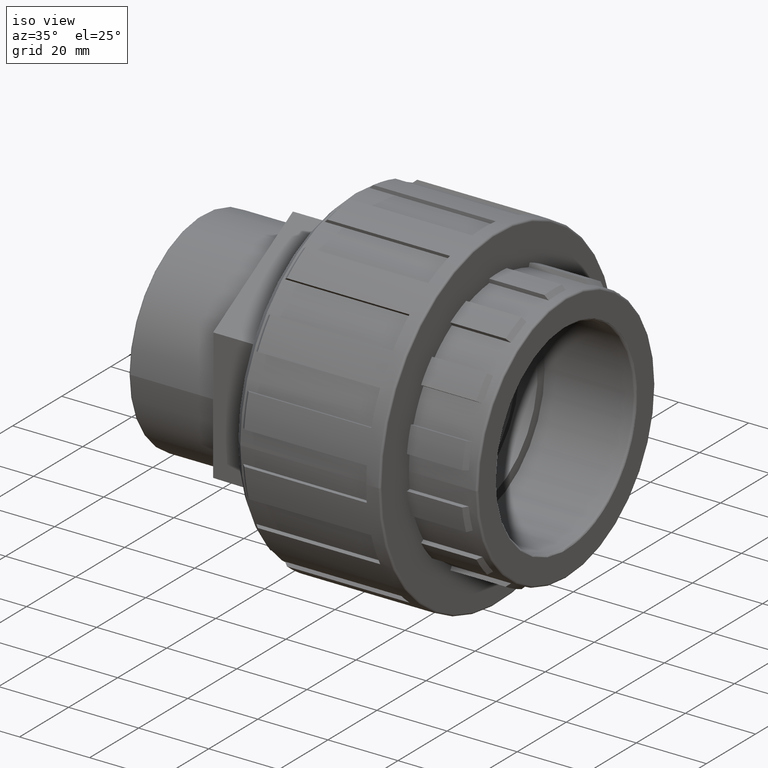
[diagram: clean part render]
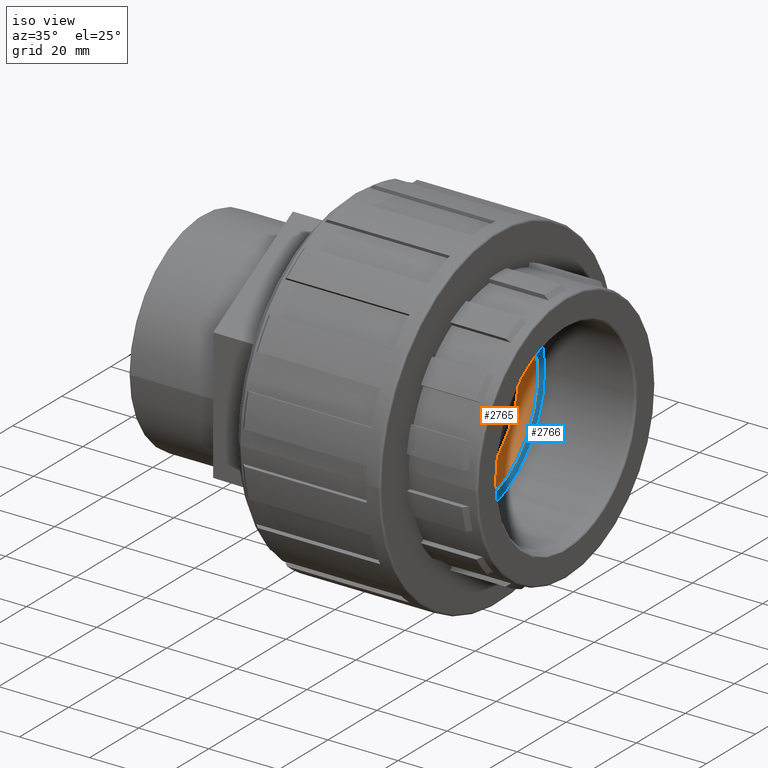
[diagram: same view with the hole feature highlighted: cylindrical wall and planar end face, labeled with their STEP entity ids]
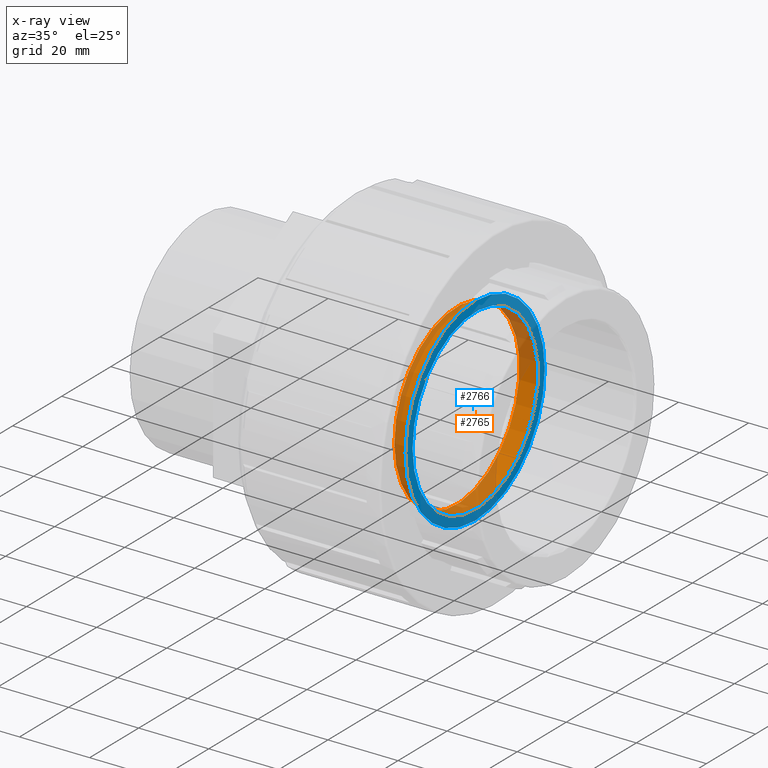
[diagram: x-ray of the same camera — body ghosted, the hole faces saturated]
A machine part, iso view. The highlighted faces form one hole feature of diameter 50.9904 mm: the cylindrical wall (entity #2765, orange) and its adjacent planar end face (entity #2766, blue) — they share a circular edge in the B-rep.
The next image is the same camera in x-ray (body ghosted, the hole faces saturated) — the bore reads through the body.
Wall:
#70=FACE_BOUND('',#547,.T.);
#94=CYLINDRICAL_SURFACE('',#3053,25.4952);
#232=CIRCLE('',#3052,25.4952);
#233=CIRCLE('',#3054,25.4952);
#379=FACE_OUTER_BOUND('',#546,.T.);
#546=EDGE_LOOP('',(#2519));
#547=EDGE_LOOP('',(#2520));
#1337=VERTEX_POINT('',#4701);
#1338=VERTEX_POINT('',#4704);
#1734=EDGE_CURVE('',#1337,#1337,#232,.T.);
#1735=EDGE_CURVE('',#1338,#1338,#233,.T.);
#2519=ORIENTED_EDGE('',*,*,#1734,.T.);
#2520=ORIENTED_EDGE('',*,*,#1735,.F.);
#2765=ADVANCED_FACE('',(#379,#70),#94,.F.);
#3052=AXIS2_PLACEMENT_3D('',#4702,#3881,#3882);
#3053=AXIS2_PLACEMENT_3D('',#4703,#3883,#3884);
#3054=AXIS2_PLACEMENT_3D('',#4705,#3885,#3886);
#3881=DIRECTION('center_axis',(-1.,-1.83697019872103E-16,0.));
#3882=DIRECTION('ref_axis',(0.,0.,1.));
#3883=DIRECTION('center_axis',(-1.,-1.83697019872103E-16,0.));
#3884=DIRECTION('ref_axis',(1.48988227547241E-16,-1.,0.));
#3885=DIRECTION('center_axis',(-1.,-1.83697019872103E-16,0.));
#3886=DIRECTION('ref_axis',(0.,0.,1.));
#4701=CARTESIAN_POINT('',(20.8,-25.4952,0.));
#4702=CARTESIAN_POINT('Origin',(20.8,1.33731430466891E-14,0.));
#4703=CARTESIAN_POINT('Origin',(23.4,1.38507552983566E-14,0.));
#4704=CARTESIAN_POINT('',(26.,-25.4952,0.));
#4705=CARTESIAN_POINT('Origin',(26.,1.4328367550024E-14,0.));
End face:
#71=FACE_BOUND('',#549,.T.);
#219=CIRCLE('',#3023,28.328);
#233=CIRCLE('',#3054,25.4952);
#380=FACE_OUTER_BOUND('',#548,.T.);
#548=EDGE_LOOP('',(#2521));
#549=EDGE_LOOP('',(#2522));
#1324=VERTEX_POINT('',#4656);
#1338=VERTEX_POINT('',#4704);
#1718=EDGE_CURVE('',#1324,#1324,#219,.T.);
#1735=EDGE_CURVE('',#1338,#1338,#233,.T.);
#2521=ORIENTED_EDGE('',*,*,#1718,.F.);
#2522=ORIENTED_EDGE('',*,*,#1735,.T.);
#2618=PLANE('',#3055);
#2766=ADVANCED_FACE('',(#380,#71),#2618,.T.);
#3023=AXIS2_PLACEMENT_3D('',#4657,#3820,#3821);
#3054=AXIS2_PLACEMENT_3D('',#4705,#3885,#3886);
#3055=AXIS2_PLACEMENT_3D('',#4706,#3887,#3888);
#3820=DIRECTION('center_axis',(-1.,-1.83697019872103E-16,0.));
#3821=DIRECTION('ref_axis',(0.,0.,1.));
#3885=DIRECTION('center_axis',(-1.,-1.83697019872103E-16,0.));
#3886=DIRECTION('ref_axis',(0.,0.,1.));
#3887=DIRECTION('center_axis',(1.,1.83697019872103E-16,0.));
#3888=DIRECTION('ref_axis',(0.,0.,-1.));
#4656=CARTESIAN_POINT('',(26.,-28.328,0.));
#4657=CARTESIAN_POINT('Origin',(26.,1.4328367550024E-14,0.));
#4704=CARTESIAN_POINT('',(26.,-25.4952,0.));
#4705=CARTESIAN_POINT('Origin',(26.,1.4328367550024E-14,0.));
#4706=CARTESIAN_POINT('Origin',(26.,-28.328,0.));